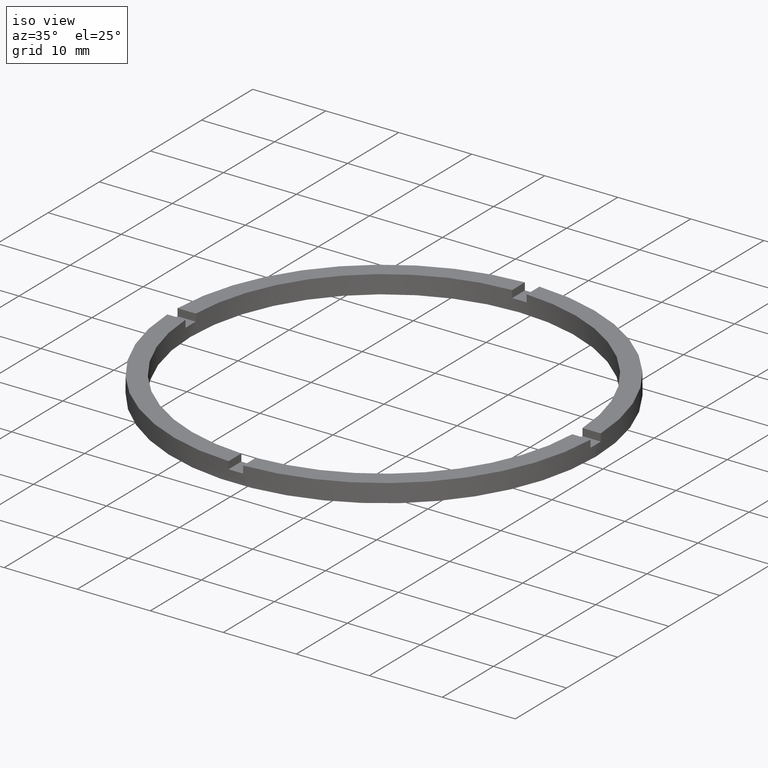
[diagram: clean part render]
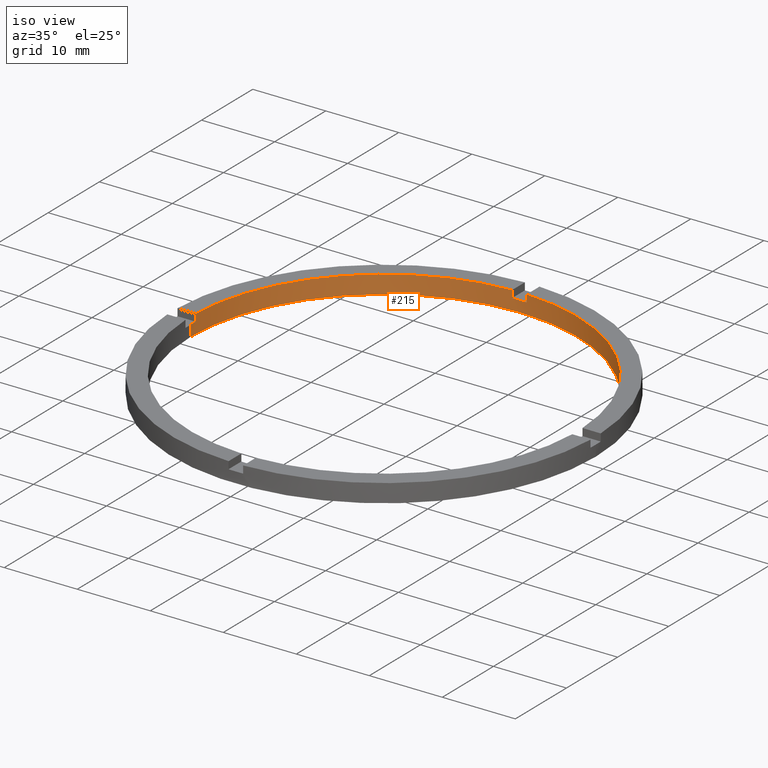
[diagram: same view with one face highlighted and labeled with its STEP entity id]
A machine part, iso view. The second image highlights one B-rep face of the part: STEP entity #215.
In plain terms, the highlighted cylindrical surface (partial cylindrical patch) has radius 26.5 mm, axis along (-0, -0, -1).
Its self-contained STEP definition (entity closure, byte-faithful):
#6 = CARTESIAN_POINT ( 'NONE',  ( 0.000000000000000000, 0.000000000000000000, 2.500000000000000000 ) ) ;
#25 = VERTEX_POINT ( 'NONE', #476 ) ;
#48 = ORIENTED_EDGE ( 'NONE', *, *, #747, .T. ) ;
#59 = VERTEX_POINT ( 'NONE', #634 ) ;
#61 = CARTESIAN_POINT ( 'NONE',  ( -26.50000000000000355, 0.000000000000000000, 2.500000000000000000 ) ) ;
#63 = VERTEX_POINT ( 'NONE', #640 ) ;
#65 = VERTEX_POINT ( 'NONE', #567 ) ;
#74 = DIRECTION ( 'NONE',  ( 1.000000000000000000, 0.000000000000000000, 0.000000000000000000 ) ) ;
#75 = VERTEX_POINT ( 'NONE', #277 ) ;
#113 = CIRCLE ( 'NONE', #564, 26.50000000000000355 ) ;
#118 = CARTESIAN_POINT ( 'NONE',  ( 0.9999999999999733546, 26.48112535373072518, 2.500000000000000000 ) ) ;
#123 = DIRECTION ( 'NONE',  ( 0.000000000000000000, 0.000000000000000000, 1.000000000000000000 ) ) ;
#128 = CIRCLE ( 'NONE', #600, 26.50000000000000355 ) ;
#154 = LINE ( 'NONE', #242, #662 ) ;
#156 = EDGE_CURVE ( 'NONE', #25, #707, #169, .T. ) ;
#158 = CYLINDRICAL_SURFACE ( 'NONE', #380, 26.50000000000000355 ) ;
#167 = FACE_OUTER_BOUND ( 'NONE', #196, .T. ) ;
#169 = LINE ( 'NONE', #118, #655 ) ;
#174 = VECTOR ( 'NONE', #371, 1000.000000000000000 ) ;
#180 = LINE ( 'NONE', #777, #174 ) ;
#188 = CARTESIAN_POINT ( 'NONE',  ( 26.48112535373072873, 0.9999999999998430145, 2.500000000000000000 ) ) ;
#195 = DIRECTION ( 'NONE',  ( -1.000000000000000000, 0.000000000000000000, 0.000000000000000000 ) ) ;
#196 = EDGE_LOOP ( 'NONE', ( #544, #591, #737, #342, #316, #48, #473, #522, #291, #462, #312, #271 ) ) ;
#199 = VERTEX_POINT ( 'NONE', #428 ) ;
#201 = CARTESIAN_POINT ( 'NONE',  ( 0.000000000000000000, 0.000000000000000000, 2.500000000000000000 ) ) ;
#207 = CARTESIAN_POINT ( 'NONE',  ( -1.000000000000026645, 26.48112535373072163, 2.500000000000000000 ) ) ;
#212 = DIRECTION ( 'NONE',  ( 1.000000000000000000, 0.000000000000000000, 0.000000000000000000 ) ) ;
#214 = CARTESIAN_POINT ( 'NONE',  ( 0.9999999999999733546, 26.48112535373072518, 2.500000000000000000 ) ) ;
#215 = ADVANCED_FACE ( 'NONE', ( #167 ), #158, .F. ) ;
#224 = DIRECTION ( 'NONE',  ( 0.000000000000000000, 0.000000000000000000, 1.000000000000000000 ) ) ;
#241 = DIRECTION ( 'NONE',  ( 1.000000000000000000, 0.000000000000000000, 0.000000000000000000 ) ) ;
#242 = CARTESIAN_POINT ( 'NONE',  ( -26.48112535373072518, 0.9999999999999731326, 2.500000000000000000 ) ) ;
#251 = DIRECTION ( 'NONE',  ( 0.000000000000000000, 0.000000000000000000, 1.000000000000000000 ) ) ;
#252 = EDGE_CURVE ( 'NONE', #75, #59, #420, .T. ) ;
#259 = CARTESIAN_POINT ( 'NONE',  ( 26.50000000000000355, 3.245314017740486554E-15, 0.000000000000000000 ) ) ;
#271 = ORIENTED_EDGE ( 'NONE', *, *, #432, .F. ) ;
#273 = VERTEX_POINT ( 'NONE', #259 ) ;
#277 = CARTESIAN_POINT ( 'NONE',  ( -1.000000000000026645, 26.48112535373072163, 2.500000000000000000 ) ) ;
#291 = ORIENTED_EDGE ( 'NONE', *, *, #426, .F. ) ;
#298 = DIRECTION ( 'NONE',  ( 0.000000000000000000, 0.000000000000000000, 1.000000000000000000 ) ) ;
#303 = VERTEX_POINT ( 'NONE', #632 ) ;
#312 = ORIENTED_EDGE ( 'NONE', *, *, #412, .T. ) ;
#316 = ORIENTED_EDGE ( 'NONE', *, *, #156, .F. ) ;
#319 = AXIS2_PLACEMENT_3D ( 'NONE', #676, #443, #74 ) ;
#342 = ORIENTED_EDGE ( 'NONE', *, *, #773, .T. ) ;
#343 = DIRECTION ( 'NONE',  ( 1.000000000000000000, 0.000000000000000000, 0.000000000000000000 ) ) ;
#355 = AXIS2_PLACEMENT_3D ( 'NONE', #201, #251, #241 ) ;
#360 = CARTESIAN_POINT ( 'NONE',  ( 0.000000000000000000, 0.000000000000000000, 2.500000000000000000 ) ) ;
#371 = DIRECTION ( 'NONE',  ( -0.000000000000000000, -0.000000000000000000, -1.000000000000000000 ) ) ;
#373 = DIRECTION ( 'NONE',  ( 1.000000000000000000, 0.000000000000000000, 0.000000000000000000 ) ) ;
#378 = DIRECTION ( 'NONE',  ( -0.000000000000000000, -0.000000000000000000, -1.000000000000000000 ) ) ;
#380 = AXIS2_PLACEMENT_3D ( 'NONE', #360, #521, #195 ) ;
#387 = CARTESIAN_POINT ( 'NONE',  ( 26.48112535373072873, 0.9999999999998430145, 2.500000000000000000 ) ) ;
#391 = DIRECTION ( 'NONE',  ( 0.000000000000000000, -0.000000000000000000, 1.000000000000000000 ) ) ;
#396 = VECTOR ( 'NONE', #496, 1000.000000000000000 ) ;
#401 = AXIS2_PLACEMENT_3D ( 'NONE', #444, #693, #549 ) ;
#404 = EDGE_CURVE ( 'NONE', #586, #775, #647, .T. ) ;
#406 = VECTOR ( 'NONE', #448, 1000.000000000000000 ) ;
#412 = EDGE_CURVE ( 'NONE', #65, #722, #419, .T. ) ;
#419 = LINE ( 'NONE', #61, #666 ) ;
#420 = LINE ( 'NONE', #207, #396 ) ;
#426 = EDGE_CURVE ( 'NONE', #63, #303, #154, .T. ) ;
#428 = CARTESIAN_POINT ( 'NONE',  ( 26.50000000000000355, 3.245314017740486554E-15, 1.500000000000000000 ) ) ;
#432 = EDGE_CURVE ( 'NONE', #273, #722, #664, .T. ) ;
#433 = CIRCLE ( 'NONE', #401, 26.50000000000000355 ) ;
#438 = AXIS2_PLACEMENT_3D ( 'NONE', #535, #612, #373 ) ;
#443 = DIRECTION ( 'NONE',  ( 0.000000000000000000, 0.000000000000000000, 1.000000000000000000 ) ) ;
#444 = CARTESIAN_POINT ( 'NONE',  ( 0.000000000000000000, 0.000000000000000000, 1.500000000000000000 ) ) ;
#448 = DIRECTION ( 'NONE',  ( -0.000000000000000000, -0.000000000000000000, -1.000000000000000000 ) ) ;
#458 = CARTESIAN_POINT ( 'NONE',  ( 0.000000000000000000, 0.000000000000000000, 1.500000000000000000 ) ) ;
#462 = ORIENTED_EDGE ( 'NONE', *, *, #503, .T. ) ;
#465 = EDGE_CURVE ( 'NONE', #199, #775, #667, .T. ) ;
#473 = ORIENTED_EDGE ( 'NONE', *, *, #252, .F. ) ;
#476 = CARTESIAN_POINT ( 'NONE',  ( 0.9999999999999733546, 26.48112535373072518, 1.500000000000000000 ) ) ;
#496 = DIRECTION ( 'NONE',  ( -0.000000000000000000, -0.000000000000000000, -1.000000000000000000 ) ) ;
#503 = EDGE_CURVE ( 'NONE', #63, #65, #433, .T. ) ;
#506 = EDGE_CURVE ( 'NONE', #199, #273, #180, .T. ) ;
#510 = CARTESIAN_POINT ( 'NONE',  ( 26.48112535373072873, 0.9999999999998430145, 1.500000000000000000 ) ) ;
#521 = DIRECTION ( 'NONE',  ( -0.000000000000000000, -0.000000000000000000, -1.000000000000000000 ) ) ;
#522 = ORIENTED_EDGE ( 'NONE', *, *, #615, .T. ) ;
#535 = CARTESIAN_POINT ( 'NONE',  ( 0.000000000000000000, 0.000000000000000000, 1.500000000000000000 ) ) ;
#544 = ORIENTED_EDGE ( 'NONE', *, *, #506, .F. ) ;
#549 = DIRECTION ( 'NONE',  ( 1.000000000000000000, 0.000000000000000000, 0.000000000000000000 ) ) ;
#564 = AXIS2_PLACEMENT_3D ( 'NONE', #458, #391, #343 ) ;
#567 = CARTESIAN_POINT ( 'NONE',  ( -26.50000000000000355, 0.000000000000000000, 1.500000000000000000 ) ) ;
#586 = VERTEX_POINT ( 'NONE', #387 ) ;
#591 = ORIENTED_EDGE ( 'NONE', *, *, #465, .T. ) ;
#600 = AXIS2_PLACEMENT_3D ( 'NONE', #6, #224, #212 ) ;
#612 = DIRECTION ( 'NONE',  ( 0.000000000000000000, 0.000000000000000000, 1.000000000000000000 ) ) ;
#615 = EDGE_CURVE ( 'NONE', #75, #303, #695, .T. ) ;
#632 = CARTESIAN_POINT ( 'NONE',  ( -26.48112535373072518, 0.9999999999999731326, 2.500000000000000000 ) ) ;
#634 = CARTESIAN_POINT ( 'NONE',  ( -1.000000000000026645, 26.48112535373072163, 1.500000000000000000 ) ) ;
#640 = CARTESIAN_POINT ( 'NONE',  ( -26.48112535373072518, 0.9999999999999731326, 1.500000000000000000 ) ) ;
#647 = LINE ( 'NONE', #188, #406 ) ;
#655 = VECTOR ( 'NONE', #123, 1000.000000000000000 ) ;
#662 = VECTOR ( 'NONE', #298, 1000.000000000000000 ) ;
#664 = CIRCLE ( 'NONE', #319, 26.50000000000000355 ) ;
#666 = VECTOR ( 'NONE', #378, 1000.000000000000000 ) ;
#667 = CIRCLE ( 'NONE', #438, 26.50000000000000355 ) ;
#676 = CARTESIAN_POINT ( 'NONE',  ( 0.000000000000000000, 0.000000000000000000, 0.000000000000000000 ) ) ;
#693 = DIRECTION ( 'NONE',  ( 0.000000000000000000, 0.000000000000000000, 1.000000000000000000 ) ) ;
#695 = CIRCLE ( 'NONE', #355, 26.50000000000000355 ) ;
#707 = VERTEX_POINT ( 'NONE', #214 ) ;
#722 = VERTEX_POINT ( 'NONE', #745 ) ;
#737 = ORIENTED_EDGE ( 'NONE', *, *, #404, .F. ) ;
#745 = CARTESIAN_POINT ( 'NONE',  ( -26.50000000000000355, 0.000000000000000000, 0.000000000000000000 ) ) ;
#747 = EDGE_CURVE ( 'NONE', #25, #59, #113, .T. ) ;
#773 = EDGE_CURVE ( 'NONE', #586, #707, #128, .T. ) ;
#775 = VERTEX_POINT ( 'NONE', #510 ) ;
#777 = CARTESIAN_POINT ( 'NONE',  ( 26.50000000000000355, 3.245314017740486554E-15, 2.500000000000000000 ) ) ;